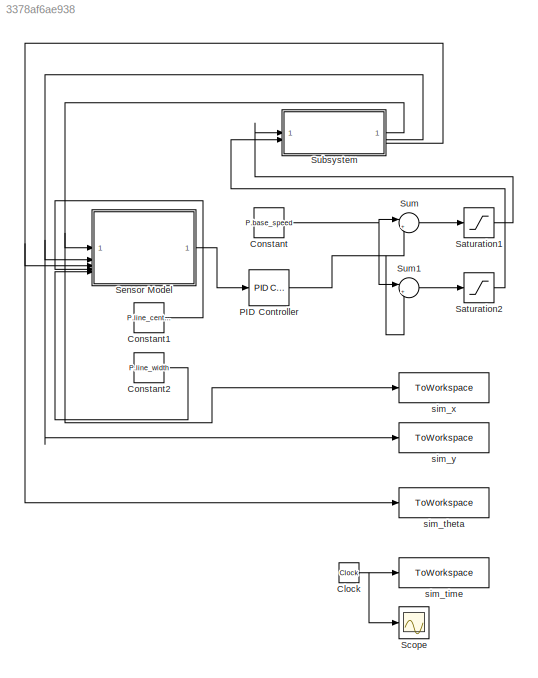
MODEL slx_3378af6ae938
KIND model
CONFIG AbsTol = auto
CONFIG EnableMultiTasking = off
CONFIG FixedStep = P.dt
CONFIG MaxStep = auto
CONFIG MinStep = auto
CONFIG RelTol = 1e-3
CONFIG SampleTimeConstraint = Unconstrained
CONFIG SolverName = ode4
CONFIG StartTime = 0.0
CONFIG StopTime = P.T_sim
BLOCK [Clock] Clock
BLOCK [Constant] Constant
  Value = P.base_speed
BLOCK [Constant] Constant1
  Value = P.line_center_x
BLOCK [Constant] Constant2
  Value = P.line_width
BLOCK [Reference] PID Controller  REF=slpidlib/PID Controller
  LibrarySourceBlock = simulink/Continuous/PID Controller
  SourceBlock = slpidlib/PID Controller
  SourceType = PID 1dof
BLOCK [Saturate] Saturation1
  LowerLimit = P.base_speed
  UpperLimit = P.base_speed * 2
BLOCK [Saturate] Saturation2
  LowerLimit = P.base_speed
  UpperLimit = P.base_speed * 2
BLOCK [Scope] Scope
  Floating = off
  NumInputPorts = 1
  ScopeSpecificationString = Simulink.scopes.TimeScopeBlockCfg('CurrentConfiguration', extmgr.ConfigurationSet(extmgr.Configuration('Core','General UI',true),extmgr.Configuration('Core','Source UI',true),extmgr.Configuration('Sources','WiredSimulink',true),extmgr.Configuration('Visuals','Time Domain',true),extmgr.Configuration('Tools','Plot Navigation',true),extmgr.Configuration('Tools','Measurements',true)),'Version','2024b'...<+1ch>
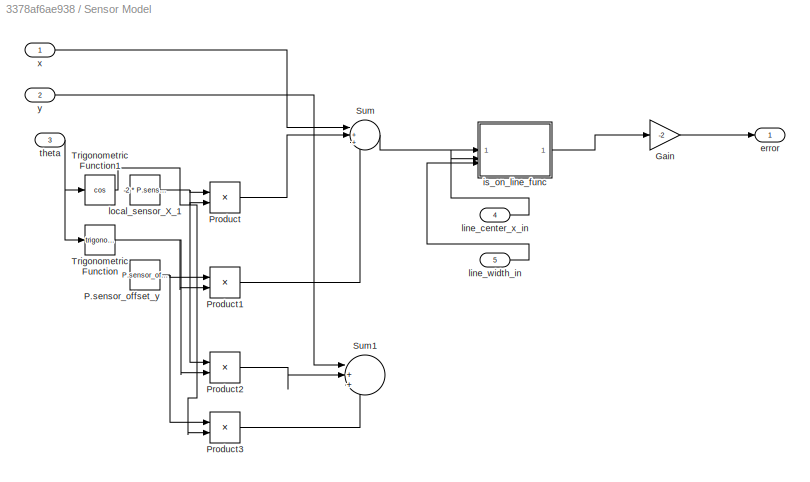
BLOCK [SubSystem] Sensor Model
BLOCK [Gain] Sensor Model/Gain
  Gain = -2
BLOCK [Constant] Sensor Model/P.sensor_offset_y
  Value = P.sensor_offset_y
BLOCK [Product] Sensor Model/Product
BLOCK [Product] Sensor Model/Product1
BLOCK [Product] Sensor Model/Product2
BLOCK [Product] Sensor Model/Product3
BLOCK [Sum] Sensor Model/Sum
  Inputs = |++-
BLOCK [Sum] Sensor Model/Sum1
  Inputs = |+++
BLOCK [Trigonometry] Sensor Model/Trigonometric Function
BLOCK [Trigonometry] Sensor Model/Trigonometric Function1
  Operator = cos
BLOCK [Outport] Sensor Model/error
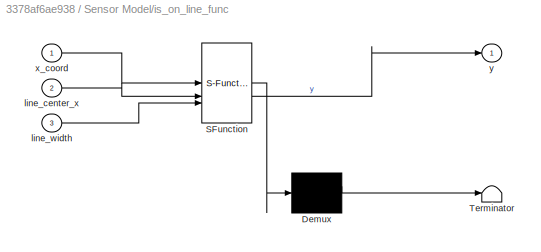
BLOCK [SubSystem] Sensor Model/is_on_line_func
  ErrorFcn = Stateflow.Translate.translate
  PermitHierarchicalResolution = ExplicitOnly
  SFBlockType = MATLAB Function
  TreatAsAtomicUnit = on
BLOCK [Demux] Sensor Model/is_on_line_func/ Demux 
  Outputs = 1
BLOCK [S-Function] Sensor Model/is_on_line_func/ SFunction 
  EnableBusSupport = on
  FunctionName = sf_sfun
  PortCounts = [3 2]
  SFcnIsStateOwnerBlock = off
  SFunctionDeploymentMode = off
  Tag = Stateflow S-Function 1
BLOCK [Terminator] Sensor Model/is_on_line_func/ Terminator 
BLOCK [Inport] Sensor Model/is_on_line_func/line_center_x
  Port = 2
BLOCK [Inport] Sensor Model/is_on_line_func/line_width
  Port = 3
BLOCK [Inport] Sensor Model/is_on_line_func/x_coord
BLOCK [Outport] Sensor Model/is_on_line_func/y
BLOCK [Inport] Sensor Model/line_center_x_in
  Port = 4
BLOCK [Inport] Sensor Model/line_width_in
  Port = 5
BLOCK [Constant] Sensor Model/local_sensor_X_1
  Value = -2 * P.sensor_spacing
BLOCK [Inport] Sensor Model/theta
  Port = 3
BLOCK [Inport] Sensor Model/x
BLOCK [Inport] Sensor Model/y
  Port = 2
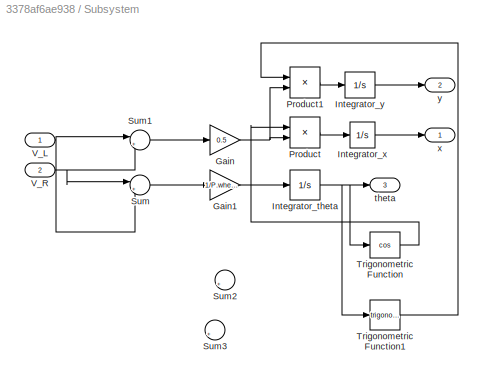
BLOCK [SubSystem] Subsystem
BLOCK [Gain] Subsystem/Gain
  Gain = 0.5
BLOCK [Gain] Subsystem/Gain1
  Gain = 1/P.wheel_base
BLOCK [Integrator] Subsystem/Integrator_theta
  InitialCondition = P.robot_theta0
BLOCK [Integrator] Subsystem/Integrator_x
  InitialCondition = P.robot_x0
BLOCK [Integrator] Subsystem/Integrator_y
  InitialCondition = P.robot_y0
BLOCK [Product] Subsystem/Product
BLOCK [Product] Subsystem/Product1
BLOCK [Sum] Subsystem/Sum
  Inputs = |+-
BLOCK [Sum] Subsystem/Sum1
  Inputs = |++
BLOCK [Sum] Subsystem/Sum2
  Inputs = |++
BLOCK [Sum] Subsystem/Sum3
  Inputs = |++
BLOCK [Trigonometry] Subsystem/Trigonometric Function
  Operator = cos
BLOCK [Trigonometry] Subsystem/Trigonometric Function1
BLOCK [Inport] Subsystem/V_L
BLOCK [Inport] Subsystem/V_R
  Port = 2
BLOCK [Outport] Subsystem/theta
  Port = 3
BLOCK [Outport] Subsystem/x
BLOCK [Outport] Subsystem/y
  Port = 2
BLOCK [Sum] Sum
  Inputs = |+-
  NameLocation = top
BLOCK [Sum] Sum1
  Inputs = |++
BLOCK [ToWorkspace] sim_theta
  FixptAsFi = on
  MaxDataPoints = inf
  SampleTime = -1
  VariableName = sim_theta
BLOCK [ToWorkspace] sim_time
  FixptAsFi = on
  MaxDataPoints = inf
  SampleTime = -1
  VariableName = sim_time
BLOCK [ToWorkspace] sim_x
  FixptAsFi = on
  MaxDataPoints = inf
  SampleTime = -1
  VariableName = sim_x
BLOCK [ToWorkspace] sim_y
  FixptAsFi = on
  MaxDataPoints = inf
  SampleTime = -1
  VariableName = sim_y
NET Clock:1 -> Scope:1, sim_time:1
LINE Constant1:1 -> Sensor Model:4
LINE Constant2:1 -> Sensor Model:5
NET Constant:1 -> Sum1:1, Sum:1
NET PID Controller:1 -> Sum1:2, Sum:2
LINE Saturation1:1 -> Subsystem:1
LINE Saturation2:1 -> Subsystem:2
LINE Sensor Model/Gain:1 -> Sensor Model/error:1
NET Sensor Model/P.sensor_offset_y:1 -> Sensor Model/Product1:1, Sensor Model/Product3:1
LINE Sensor Model/Product1:1 -> Sensor Model/Sum:3
LINE Sensor Model/Product2:1 -> Sensor Model/Sum1:2
LINE Sensor Model/Product3:1 -> Sensor Model/Sum1:3
LINE Sensor Model/Product:1 -> Sensor Model/Sum:2
LINE Sensor Model/Sum:1 -> Sensor Model/is_on_line_func:1
NET Sensor Model/Trigonometric Function1:1 -> Sensor Model/Product3:2, Sensor Model/Product:2
NET Sensor Model/Trigonometric Function:1 -> Sensor Model/Product1:2, Sensor Model/Product2:2
LINE Sensor Model/is_on_line_func:1 -> Sensor Model/Gain:1
LINE Sensor Model/line_center_x_in:1 -> Sensor Model/is_on_line_func:2
LINE Sensor Model/line_width_in:1 -> Sensor Model/is_on_line_func:3
NET Sensor Model/local_sensor_X_1:1 -> Sensor Model/Product2:1, Sensor Model/Product:1
NET Sensor Model/theta:1 -> Sensor Model/Trigonometric Function1:1, Sensor Model/Trigonometric Function:1
LINE Sensor Model/x:1 -> Sensor Model/Sum:1
LINE Sensor Model/y:1 -> Sensor Model/Sum1:1
LINE Sensor Model:1 -> PID Controller:1
LINE Subsystem/Gain1:1 -> Subsystem/Integrator_theta:1
NET Subsystem/Gain:1 -> Subsystem/Product1:2, Subsystem/Product:2
NET Subsystem/Integrator_theta:1 -> Subsystem/Trigonometric Function1:1, Subsystem/Trigonometric Function:1, Subsystem/theta:1
LINE Subsystem/Integrator_x:1 -> Subsystem/x:1
LINE Subsystem/Integrator_y:1 -> Subsystem/y:1
LINE Subsystem/Product1:1 -> Subsystem/Integrator_y:1
LINE Subsystem/Product:1 -> Subsystem/Integrator_x:1
LINE Subsystem/Sum1:1 -> Subsystem/Gain:1
LINE Subsystem/Sum:1 -> Subsystem/Gain1:1
LINE Subsystem/Trigonometric Function1:1 -> Subsystem/Product1:1
LINE Subsystem/Trigonometric Function:1 -> Subsystem/Product:1
NET Subsystem/V_L:1 -> Subsystem/Sum1:1, Subsystem/Sum:2
NET Subsystem/V_R:1 -> Subsystem/Sum1:2, Subsystem/Sum:1
NET Subsystem:1 -> Sensor Model:1, sim_x:1
NET Subsystem:2 -> Sensor Model:2, sim_y:1
NET Subsystem:3 -> Sensor Model:3, sim_theta:1
LINE Sum1:1 -> Saturation2:1
LINE Sum:1 -> Saturation1:1
note: NET lines group one-source signal fan-out (src -> all destinations, sorted); 1:1 wires keep LINE
CHART Sensor Model/is_on_line_func states=1 transitions=1
  STATE_LABEL 'eML_blk_kernel()'
  STATE_LABEL "SCRIPT:\nfunction y = is_on_line_func(x_coord, line_center_x, line_width)\n% This block calculates if a point is on the line for code generation.\n\n% Initialize the output variable 'y' to ensure it's always defined\n% This line is CRUCIAL and must be the first executable line after the function definition.\ny = 0;\n\nif abs(x_coord - line_center_x) < line_width / 2\n    y = 1; % Assign y a value if the co...<+172ch>"
CHART  states=0 transitions=0
